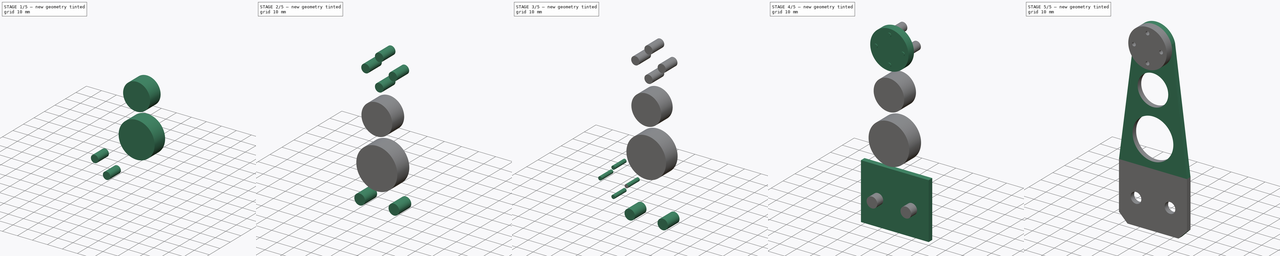
[diagram: build sequence overview — one tinted view per stage of 5, left to right]
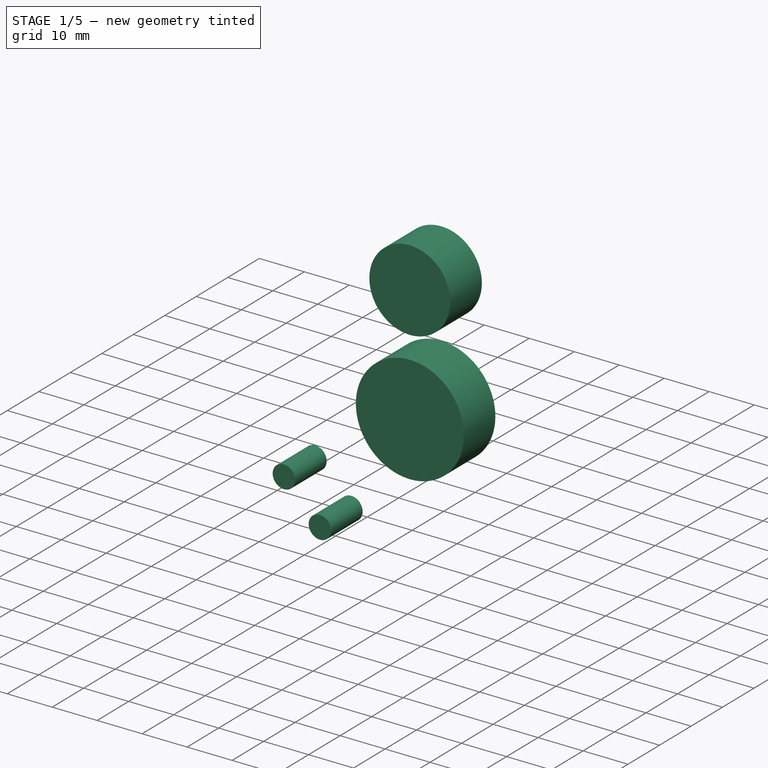
[diagram: stage 1 of 5 — iso view after this stage's code; geometry added in this stage tinted green]
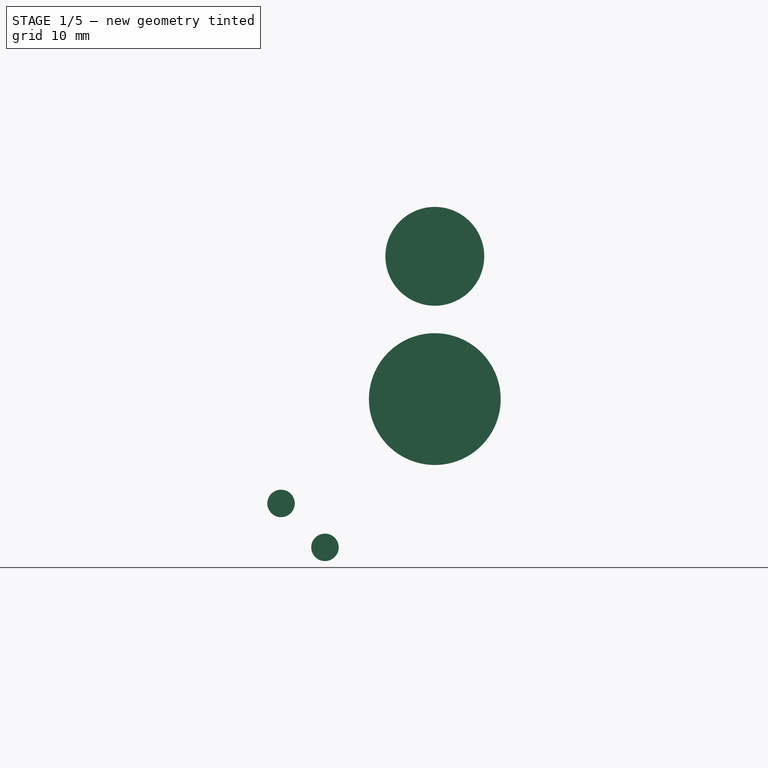
[diagram: stage 1 of 5 — front view after this stage's code; geometry added in this stage tinted green]
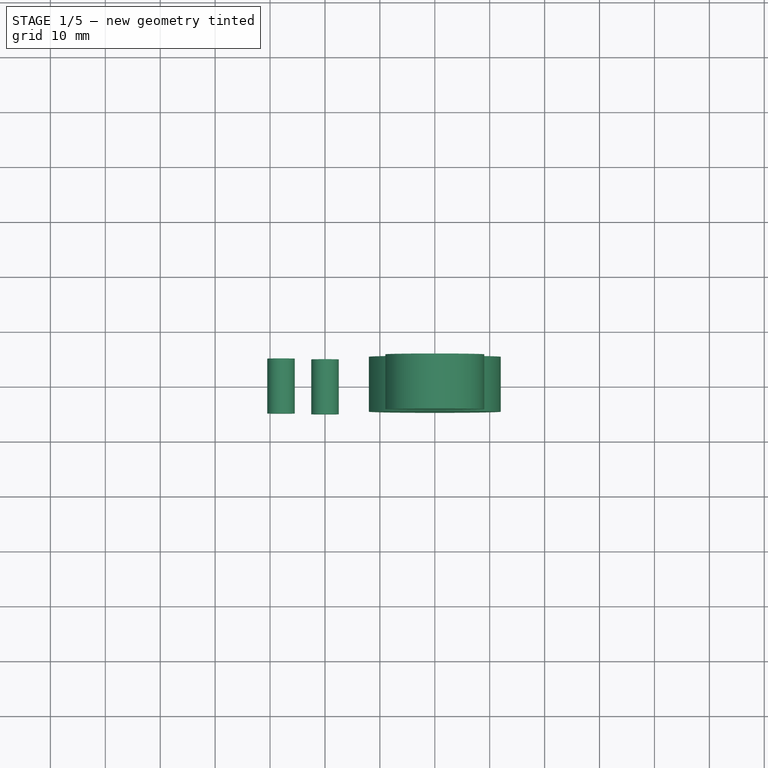
[diagram: stage 1 of 5 — top view after this stage's code; geometry added in this stage tinted green]
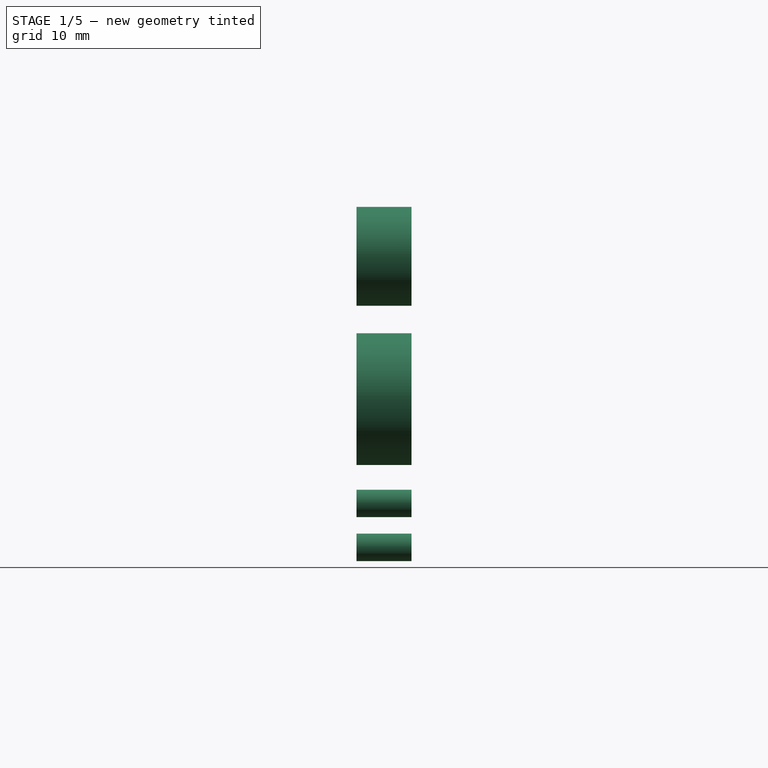
[diagram: stage 1 of 5 — right view after this stage's code; geometry added in this stage tinted green]
FCSTD DOCUMENT  (FreeCAD 0.15R4671 (Git))
Label: yaw_encoder_plate
License: All rights reserved
LicenseURL: http://en.wikipedia.org/wiki/All_rights_reserved
objects: Part::Cylinder×13, Part::MultiFuse×6, Part::Box×2, Part::Cut×2, Sketcher::SketchObject×1, Part::Extrusion×1, Part::Chamfer×1
note: 26 computed .brp shape members not serialized (recipe doc carries the construction recipe); baked Part::Feature solids carry a one-line shape summary decoded from their .brp

FEATURE [Part::Cylinder] Cylinder009
  Angle = 360
  Height = 10
  Placement = pos=(-8,5,0) rot=(1,0,0;1.5708rad)
  Radius = 2.5
FEATURE [Part::Cylinder] Cylinder010
  Angle = 360
  Height = 10
  Placement = pos=(0,5,-8) rot=(1,0,0;1.5708rad)
  Radius = 2.5
FEATURE [Part::Cylinder] Cylinder011
  Angle = 360
  Height = 10
  Placement = pos=(20,5,19) rot=(1,0,0;1.5708rad)
  Radius = 12
FEATURE [Part::Cylinder] Cylinder012
  Angle = 360
  Height = 10
  Placement = pos=(20,5,45) rot=(1,0,0;1.5708rad)
  Radius = 9
FEATURE [Part::MultiFuse] Fusion005
  Shapes = -> [Cylinder011,Cylinder012]
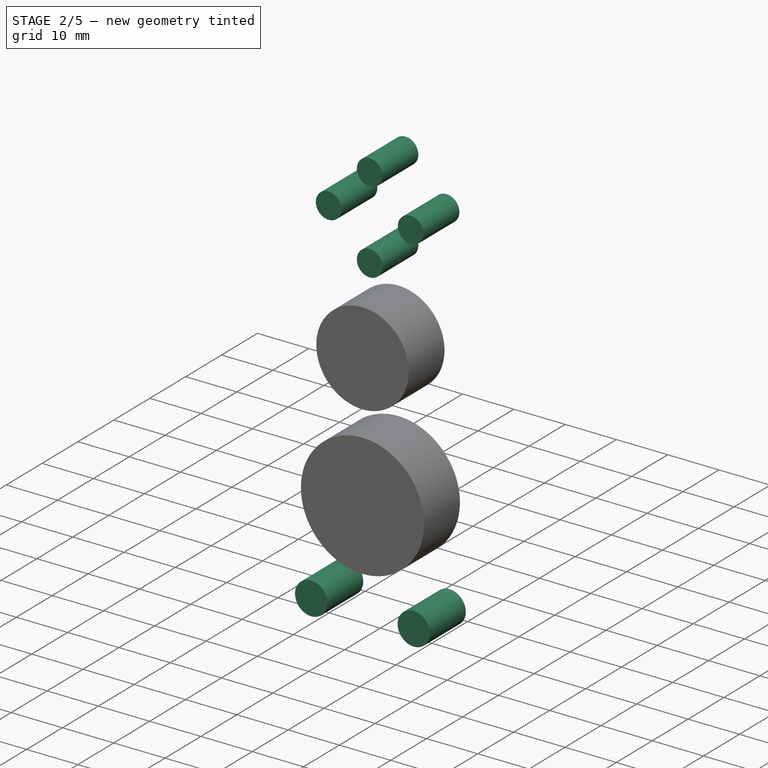
[diagram: stage 2 of 5 — iso view after this stage's code; geometry added in this stage tinted green]
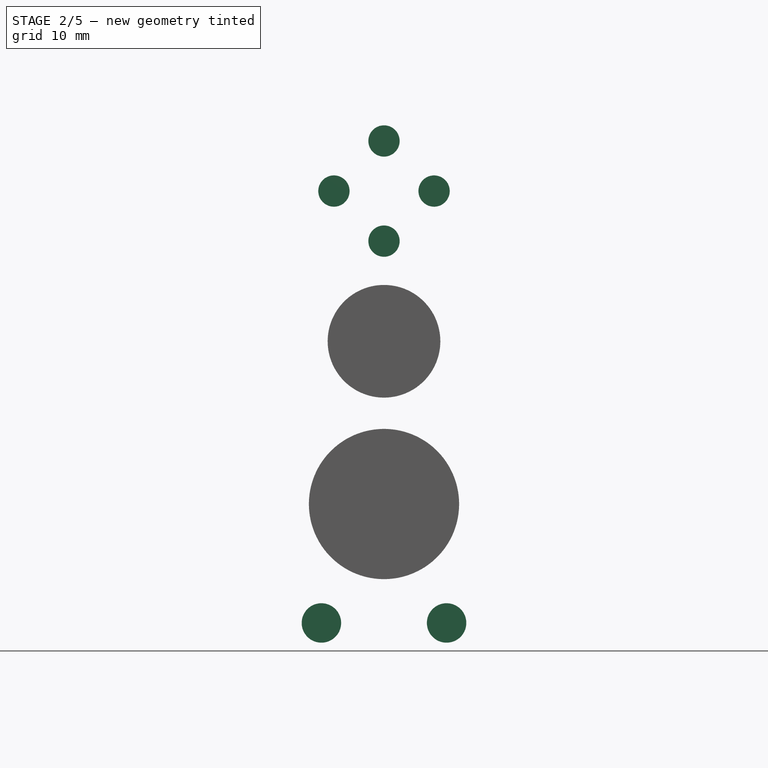
[diagram: stage 2 of 5 — front view after this stage's code; geometry added in this stage tinted green]
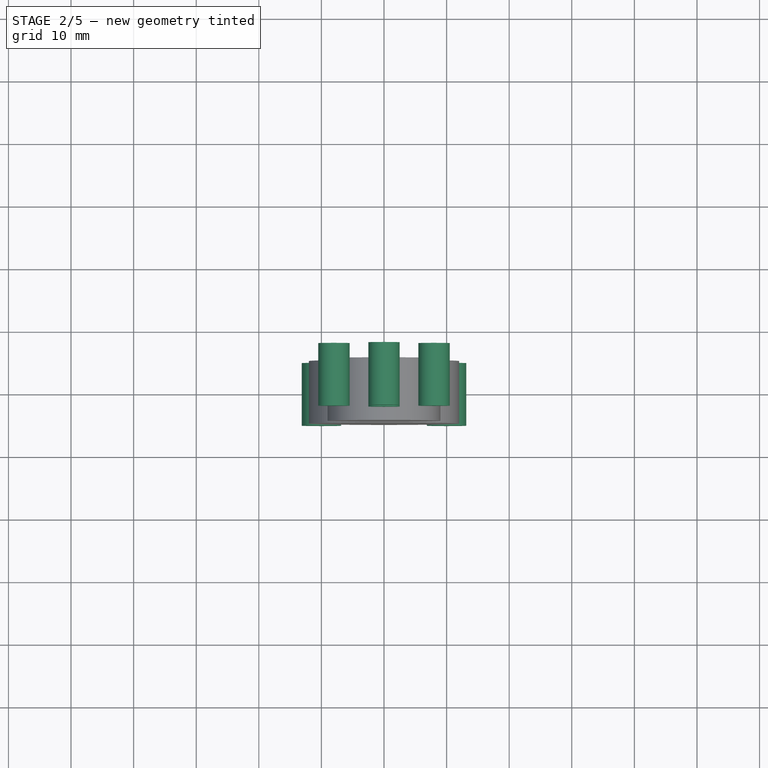
[diagram: stage 2 of 5 — top view after this stage's code; geometry added in this stage tinted green]
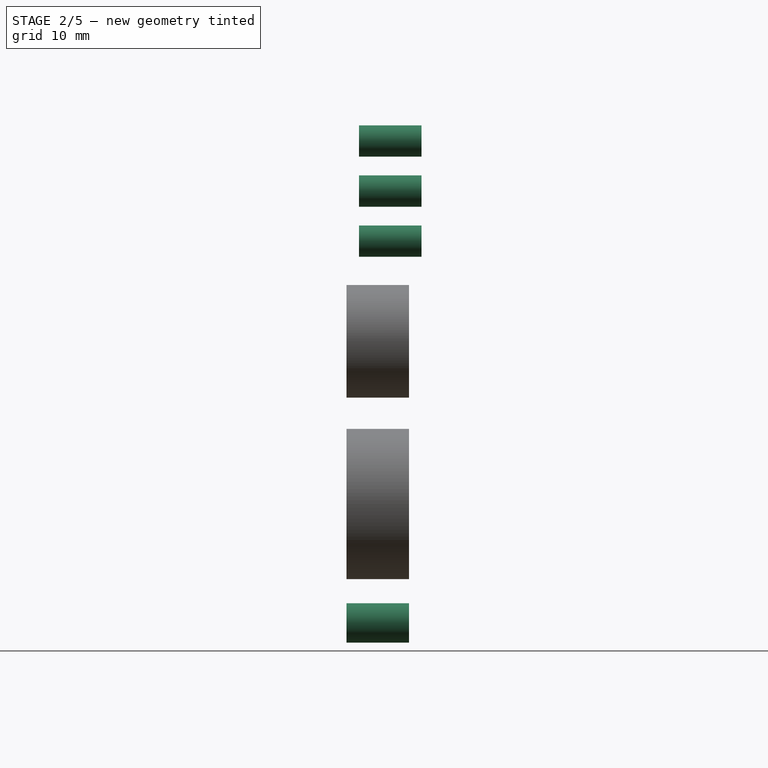
[diagram: stage 2 of 5 — right view after this stage's code; geometry added in this stage tinted green]
FEATURE [Sketcher::SketchObject] Sketch
  Placement = pos=(0,0,0) rot=(1,0,0;1.5708rad)
  Support = -> Box [Face3]
  sketch-geometry (4):
    g0: LineSegment StartX=0 StartY=3 StartZ=0 EndX=40 EndY=3 EndZ=0
    g1: LineSegment StartX=40 StartY=3 StartZ=0 EndX=30.8896 EndY=72 EndZ=0
    g2: LineSegment StartX=0 StartY=3 StartZ=0 EndX=9.1104 EndY=72 EndZ=0
    g3: ArcOfCircle CenterX=20 CenterY=69 CenterZ=0 NormalX=0 NormalY=0 NormalZ=1 Radius=11.2953 StartAngle=0.268824 EndAngle=2.87277
  constraints (13):
    c: DistanceY(g0) = 3
    c: Horizontal(g0)
    c: DistanceX(g0) = 40
    c: Coincident(g1,g0)
    c: Coincident(g3,g2)
    c: Coincident(g3,g1)
    c: DistanceY(g3) = 69
    c: DistanceX(g2) = 9.1104
    c: DistanceX(g1) = 30.8896
    c: DistanceY(g2) = 72
    c: DistanceY(g1) = 72
    c: DistanceX(g0) = 0
    c: Coincident(g2,g0)
FEATURE [Part::Cylinder] Cylinder
  Angle = 360
  Height = 10
  Placement = pos=(10,5,0) rot=(1,0,0;1.5708rad)
  Radius = 3.15
FEATURE [Part::Cylinder] Cylinder001
  Angle = 360
  Height = 10
  Placement = pos=(30,5,0) rot=(1,0,0;1.5708rad)
  Radius = 3.15
FEATURE [Part::Cylinder] Cylinder007
  Angle = 360
  Height = 10
  Placement = pos=(8,5,0) rot=(1,0,0;1.5708rad)
  Radius = 2.5
FEATURE [Part::Cylinder] Cylinder008
  Angle = 360
  Height = 10
  Placement = pos=(0,5,8) rot=(1,0,0;1.5708rad)
  Radius = 2.5
FEATURE [Part::MultiFuse] Fusion002
  Placement = pos=(20,2,69) rot=(0,0,1;0rad)
  Shapes = -> [Cylinder010,Cylinder008,Cylinder009,Cylinder007]
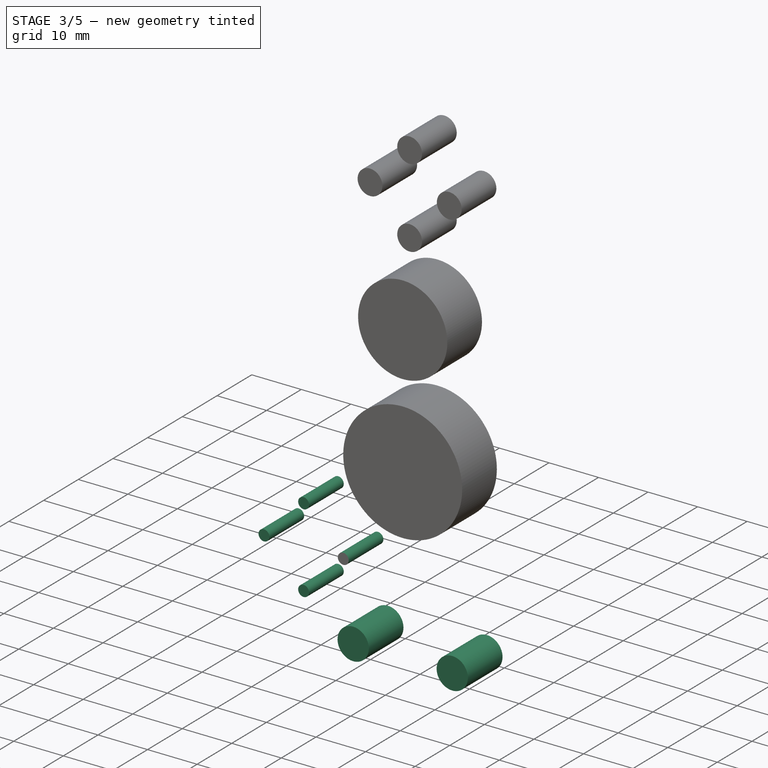
[diagram: stage 3 of 5 — iso view after this stage's code; geometry added in this stage tinted green]
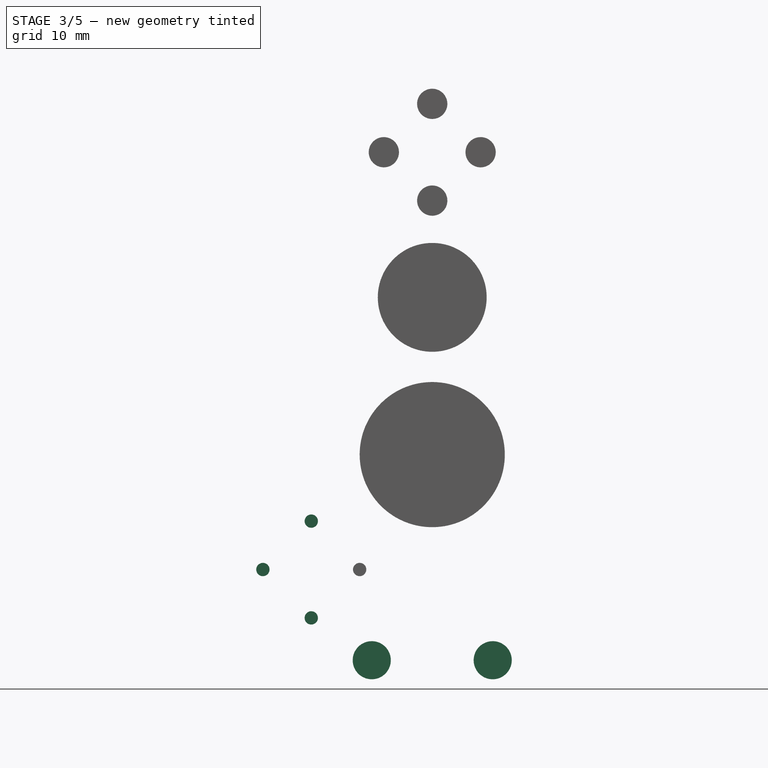
[diagram: stage 3 of 5 — front view after this stage's code; geometry added in this stage tinted green]
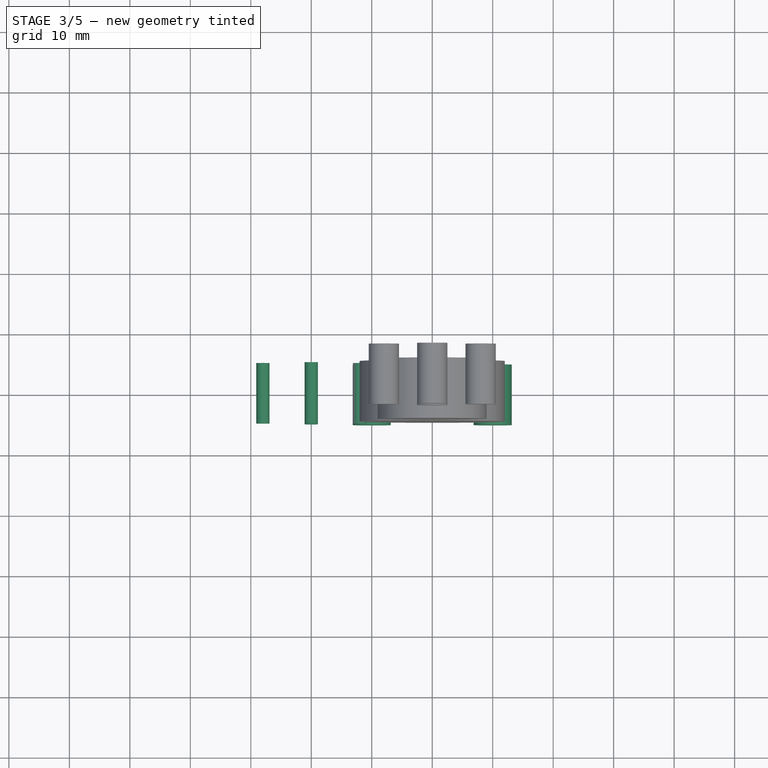
[diagram: stage 3 of 5 — top view after this stage's code; geometry added in this stage tinted green]
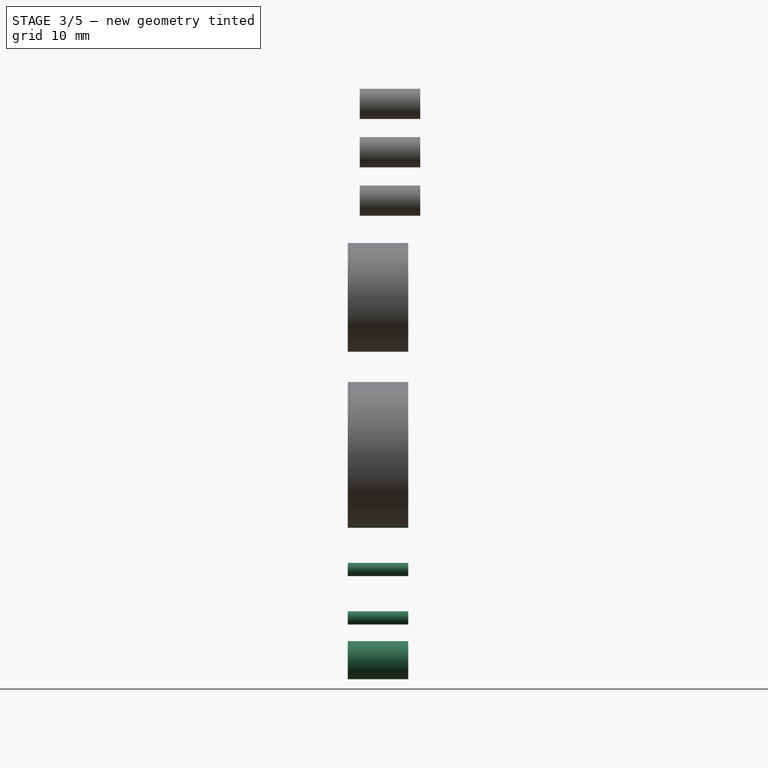
[diagram: stage 3 of 5 — right view after this stage's code; geometry added in this stage tinted green]
FEATURE [Part::Cylinder] Cylinder002
  Angle = 360
  Height = 10
  Placement = pos=(8,5,0) rot=(1,0,0;1.5708rad)
  Radius = 1.1
FEATURE [Part::Cylinder] Cylinder003
  Angle = 360
  Height = 10
  Placement = pos=(0,5,8) rot=(1,0,0;1.5708rad)
  Radius = 1.1
FEATURE [Part::Cylinder] Cylinder004
  Angle = 360
  Height = 10
  Placement = pos=(-8,5,0) rot=(1,0,0;1.5708rad)
  Radius = 1.1
FEATURE [Part::Cylinder] Cylinder005
  Angle = 360
  Height = 10
  Placement = pos=(0,5,-8) rot=(1,0,0;1.5708rad)
  Radius = 1.1
FEATURE [Part::MultiFuse] Fusion001
  Placement = pos=(0,0,-15) rot=(0,0,1;0rad)
  Shapes = -> [Cylinder001,Cylinder]
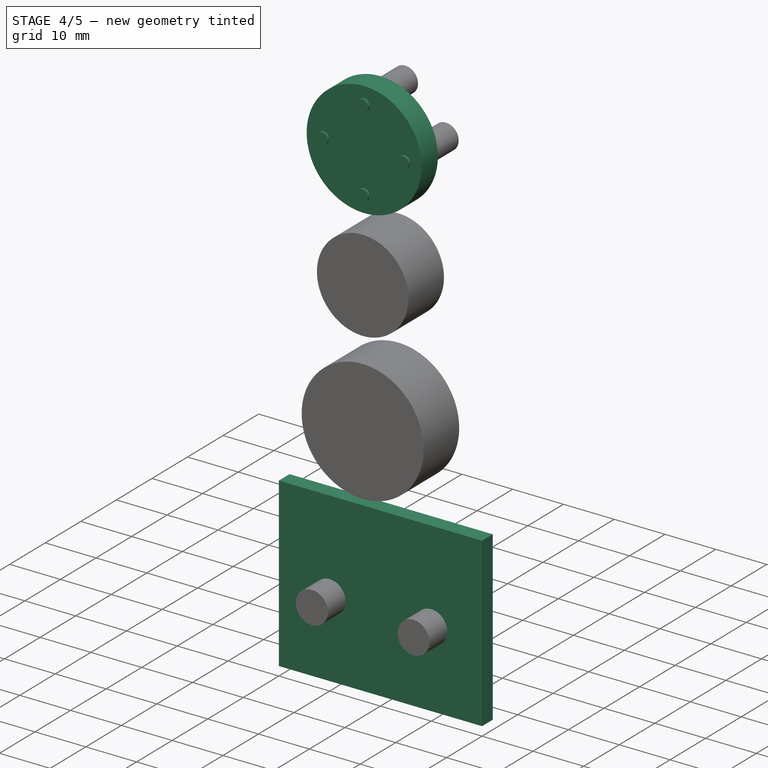
[diagram: stage 4 of 5 — iso view after this stage's code; geometry added in this stage tinted green]
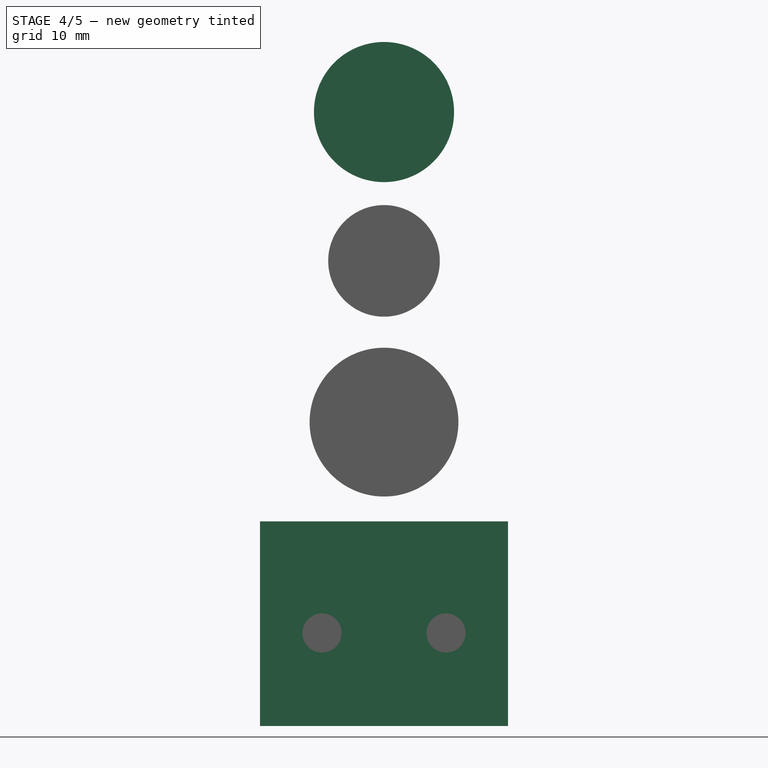
[diagram: stage 4 of 5 — front view after this stage's code; geometry added in this stage tinted green]
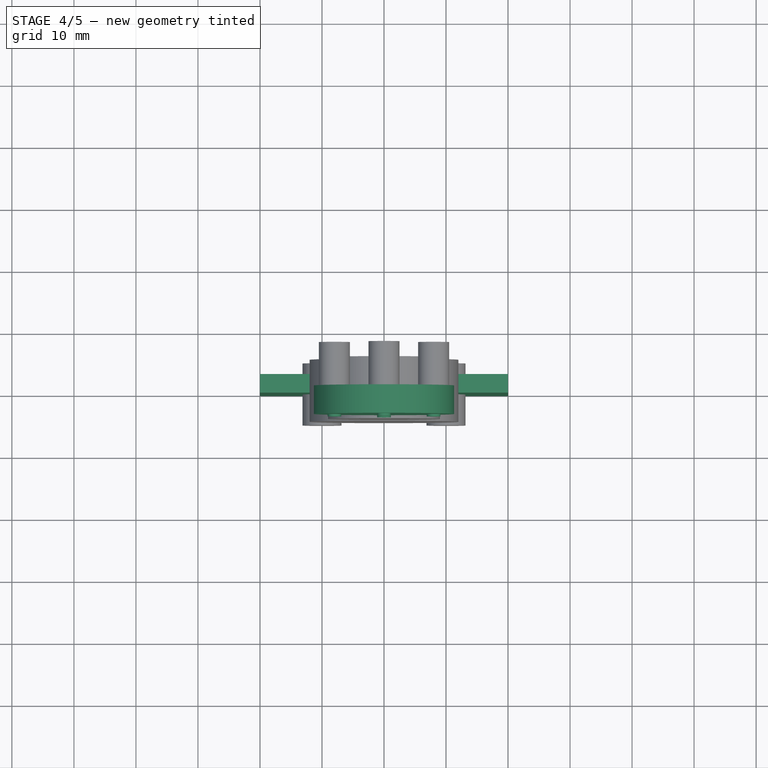
[diagram: stage 4 of 5 — top view after this stage's code; geometry added in this stage tinted green]
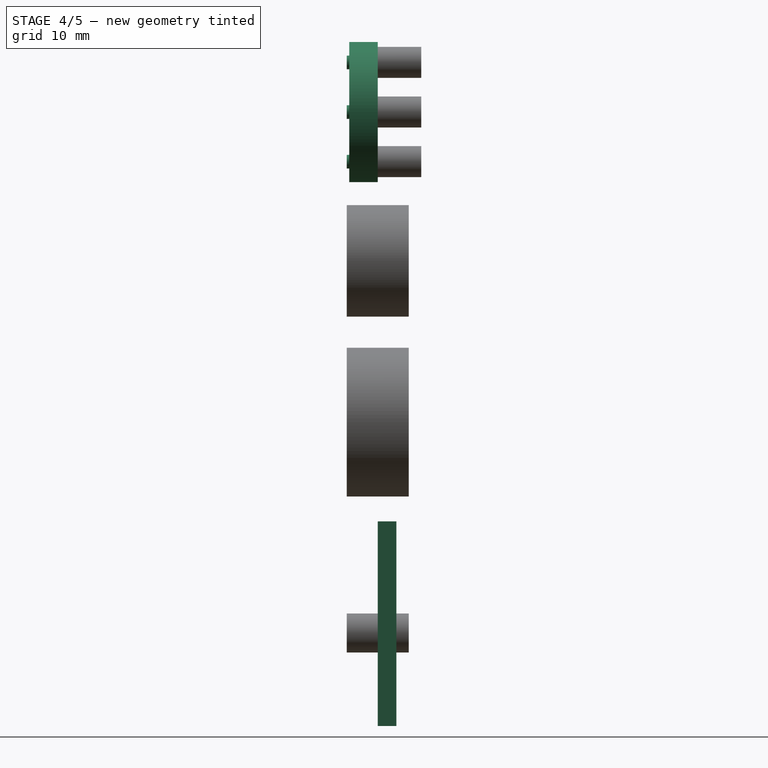
[diagram: stage 4 of 5 — right view after this stage's code; geometry added in this stage tinted green]
FEATURE [Part::Box] Box  label="Cube"
  Height = 3
  Length = 40
  Width = 3
FEATURE [Part::MultiFuse] Fusion
  Placement = pos=(20,0,69) rot=(0,0,1;0rad)
  Shapes = -> [Cylinder005,Cylinder003,Cylinder004,Cylinder002]
FEATURE [Part::Box] Box001  label="Cube001"
  Height = 30
  Length = 40
  Placement = pos=(0,0,-30) rot=(0,0,1;0rad)
  Width = 3
FEATURE [Part::Cylinder] Cylinder006
  Angle = 360
  Height = 4.6
  Placement = pos=(20,0,69) rot=(1,0,0;1.5708rad)
  Radius = 11.3
FEATURE [Part::MultiFuse] Fusion004
  Shapes = -> [Fusion,Fusion001,Fusion002]
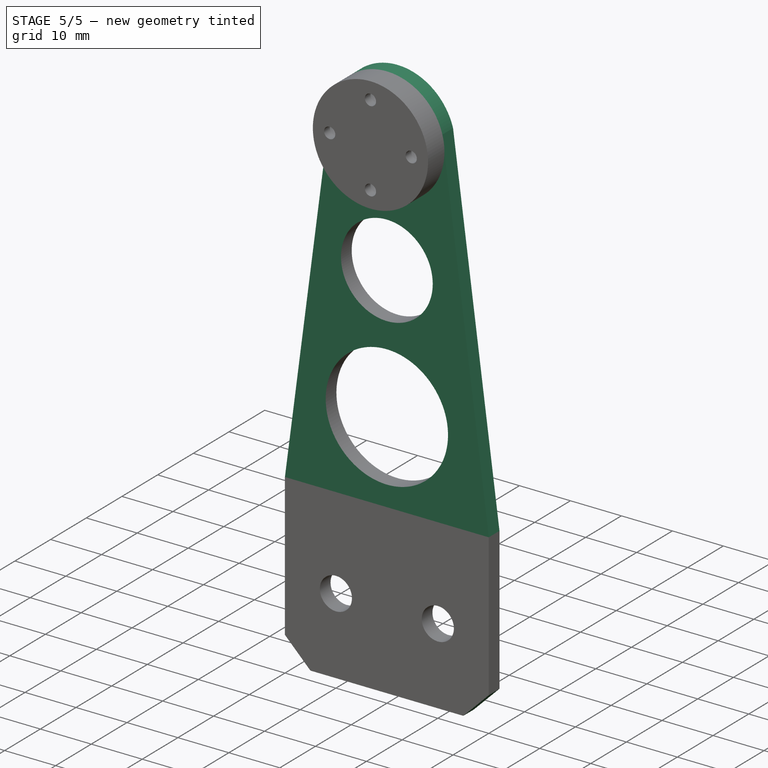
[diagram: stage 5 of 5 — iso view after this stage's code; geometry added in this stage tinted green]
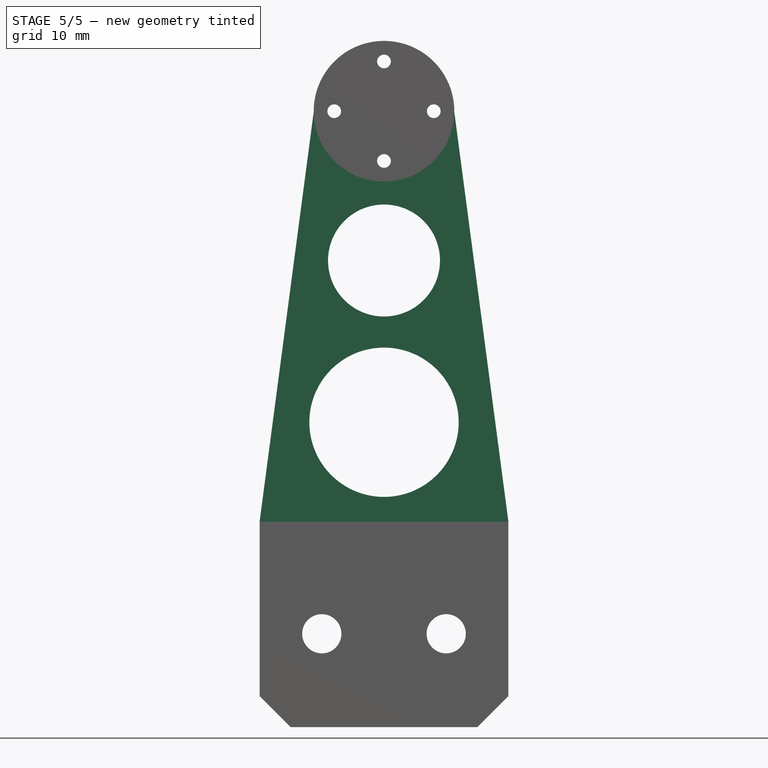
[diagram: stage 5 of 5 — front view after this stage's code; geometry added in this stage tinted green]
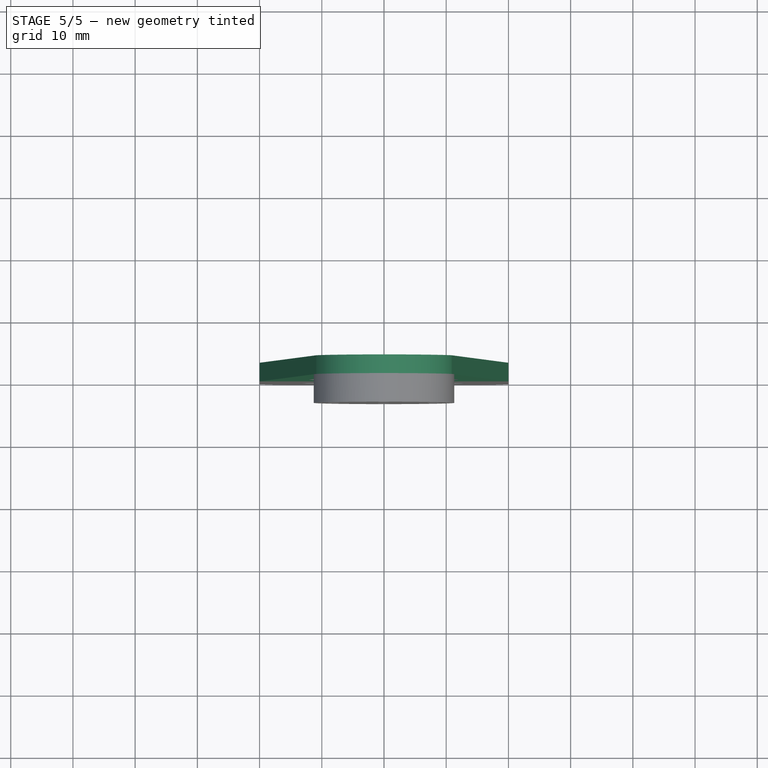
[diagram: stage 5 of 5 — top view after this stage's code; geometry added in this stage tinted green]
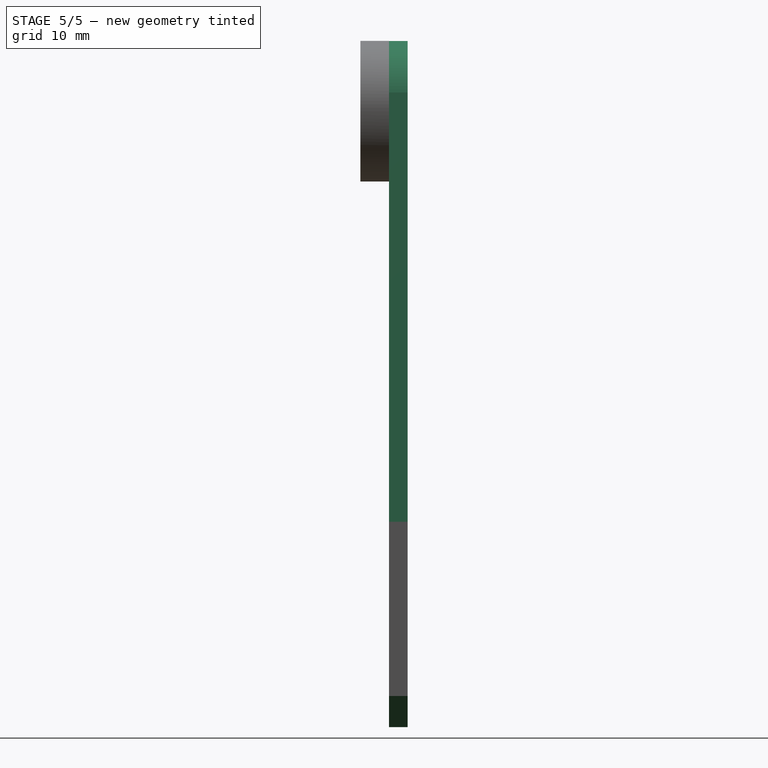
[diagram: stage 5 of 5 — right view after this stage's code; geometry added in this stage tinted green]
FEATURE [Part::Extrusion] Extrude
  Base = -> Sketch
  Dir = (0,3,0)
  Solid = true
FEATURE [Part::MultiFuse] Fusion003
  Shapes = -> [Cylinder006,Box001,Extrude,Box]
FEATURE [Part::Cut] Cut
  Base = -> Fusion003
  Tool = -> Fusion004
FEATURE [Part::Chamfer] Chamfer
  Base = -> Cut
  Edges = 2 edges r=5: [Edge44,Edge56]
FEATURE [Part::Cut] Cut001
  Base = -> Chamfer
  Tool = -> Fusion005
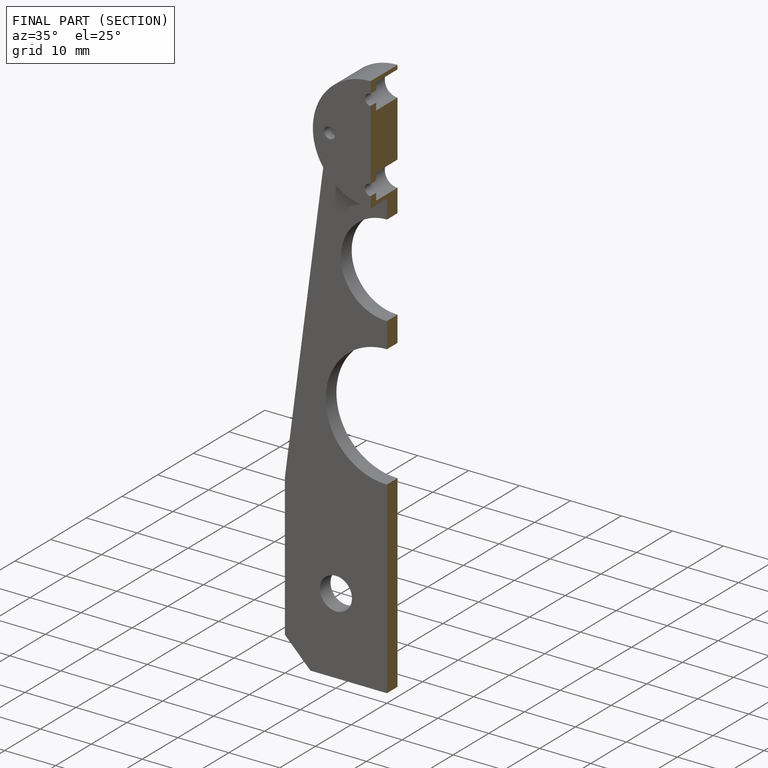
[diagram: finished part — half-section view (interior)]
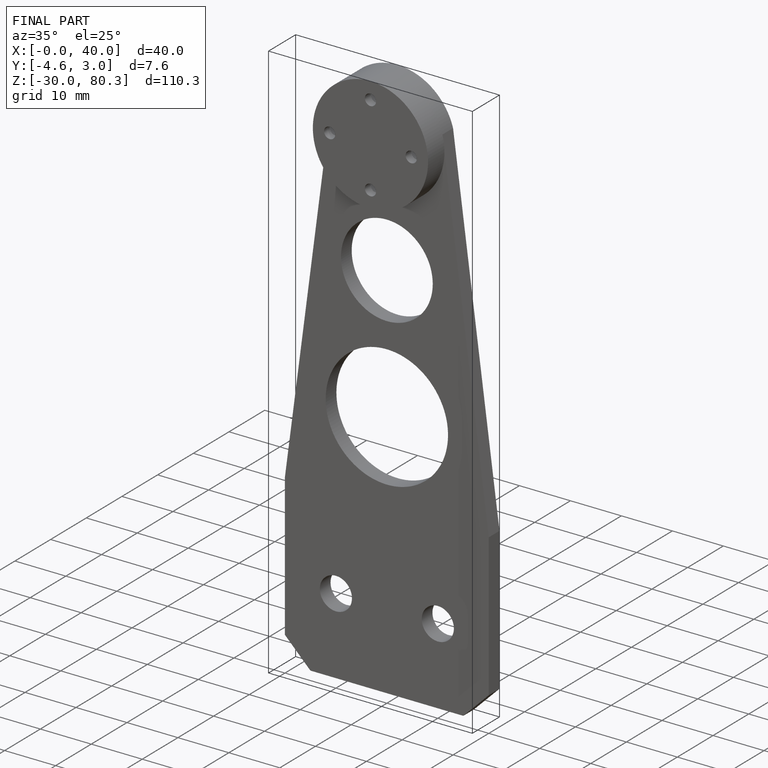
[diagram: finished part — iso view with bounding-box wireframe]
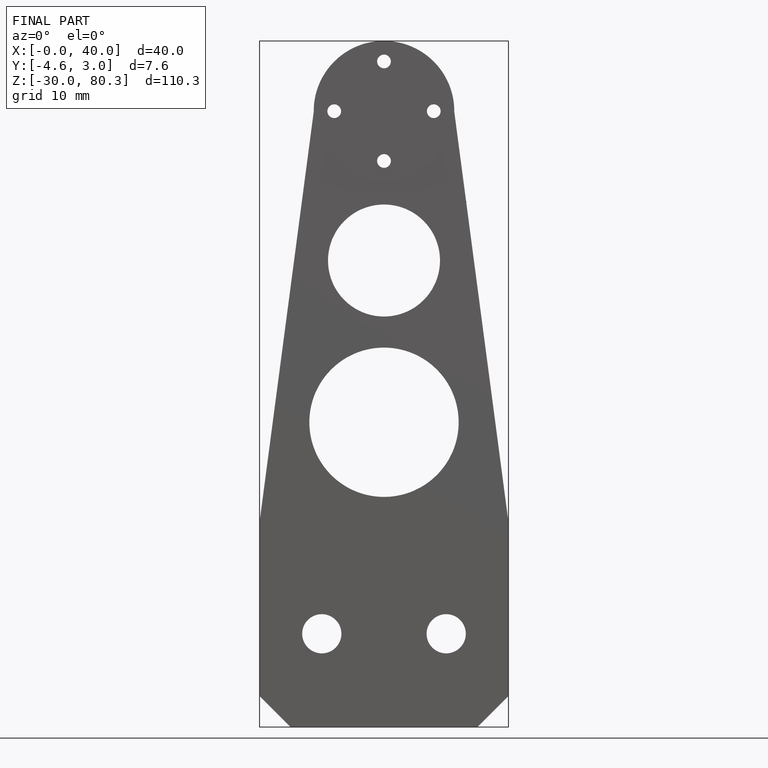
[diagram: finished part — front view with bounding-box wireframe]
